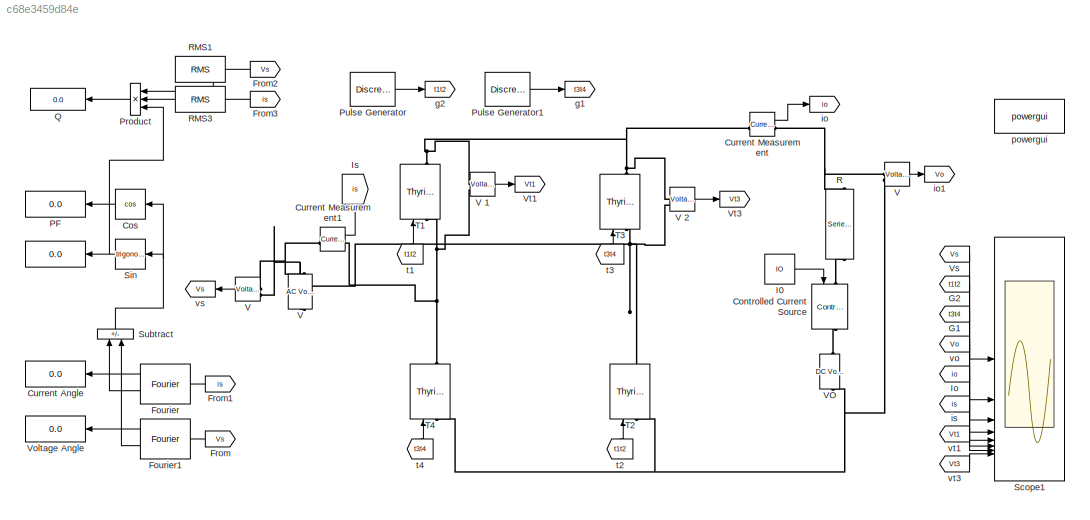
MODEL slx_c68e3459d84e
KIND model
CONFIG AbsTol = auto
CONFIG EnableMultiTasking = on
CONFIG FixedStep = auto
CONFIG InitFcn = V=311.12\nF=50\nR=0.5\nIO=10\nVO=135\nA=1\nP=50\nPA=0.02\nAN1=(30*0.02)/360\nAN2=(210*0.02)/360
CONFIG MaxStep = 1e-4
CONFIG MinStep = auto
CONFIG RelTol = 1e-3
CONFIG SampleTimeConstraint = Unconstrained
CONFIG SolverName = ode23tb
CONFIG StartTime = 0.0
CONFIG StopTime = 0.08
BLOCK [Display]   
  Decimation = 1
  NameLocation = top
BLOCK [Reference]  V  REF=spsACVoltageSourceLib/AC Voltage Source
  LibrarySourceBlock = sps_lib/Sources/AC Voltage Source
  NameLocation = right
  SourceBlock = spsACVoltageSourceLib/AC Voltage Source
  SourceType = AC Voltage Source
BLOCK [Reference]  VO  REF=spsDCVoltageSourceLib/DC Voltage Source
  LibrarySourceBlock = sps_lib/Sources/DC Voltage Source
  NameLocation = left
  SourceBlock = spsDCVoltageSourceLib/DC Voltage Source
  SourceType = DC Voltage Source
BLOCK [Reference] Controlled Current Source  REF=spsControlledCurrentSourceLib/Controlled Current Source
  LibrarySourceBlock = sps_lib/Sources/Controlled Current Source
  NameLocation = left
  SourceBlock = spsControlledCurrentSourceLib/Controlled Current Source
  SourceType = Controlled Current Source
BLOCK [Trigonometry] Cos
  NameLocation = top
  Operator = cos
BLOCK [Display] Current Angle
  Decimation = 1
  NameLocation = top
BLOCK [Reference] Current Measurement  REF=spsCurrentMeasurementLib/Current Measurement
  LibrarySourceBlock = sps_lib/Sensors and Measurements/Current Measurement
  SourceBlock = spsCurrentMeasurementLib/Current Measurement
  SourceType = Current Measurement
BLOCK [Reference] Current Measurement1  REF=spsCurrentMeasurementLib/Current Measurement
  LibrarySourceBlock = sps_lib/Sensors and Measurements/Current Measurement
  SourceBlock = spsCurrentMeasurementLib/Current Measurement
  SourceType = Current Measurement
BLOCK [Reference] Fourier  REF=spsFourierLib/Fourier
  LibrarySourceBlock = sps_lib/Sensors and Measurements/Fourier
  NameLocation = top
  SourceBlock = spsFourierLib/Fourier
  SourceType = Fourier
BLOCK [Reference] Fourier1  REF=spsFourierLib/Fourier
  LibrarySourceBlock = sps_lib/Sensors and Measurements/Fourier
  SourceBlock = spsFourierLib/Fourier
  SourceType = Fourier
BLOCK [From] From
  GotoTag = Vs
  TagVisibility = global
BLOCK [From] From1
  GotoTag = is
  NameLocation = top
BLOCK [From] From2
  GotoTag = Vs
  TagVisibility = global
BLOCK [From] From3
  GotoTag = is
BLOCK [From] G1
  GotoTag = t3t4
  TagVisibility = global
BLOCK [From] G2
  GotoTag = t1t2
  TagVisibility = global
BLOCK [Constant] I0
  Value = IO
BLOCK [From] Io
  GotoTag = io
  TagVisibility = global
BLOCK [Goto] Is
  GotoTag = is
  NameLocation = left
BLOCK [Display] PF
  Decimation = 1
  NameLocation = top
BLOCK [Product] Product
  Inputs = 3
  NameLocation = top
BLOCK [DiscretePulseGenerator] Pulse Generator
  Amplitude = A
  Period = PA
  PhaseDelay = AN1
  PulseType = Time based
  PulseWidth = P
BLOCK [DiscretePulseGenerator] Pulse Generator1
  Amplitude = A
  Period = PA
  PhaseDelay = AN2
  PulseType = Time based
  PulseWidth = P
BLOCK [Display] Q
  Decimation = 1
BLOCK [Reference] R  REF=spsSeriesRLCBranchLib/Series RLC Branch
  LibrarySourceBlock = sps_lib/Passives/Series RLC Branch
  NameLocation = left
  SourceBlock = spsSeriesRLCBranchLib/Series RLC Branch
  SourceType = Series RLC Branch
BLOCK [Reference] RMS1  REF=spsRMSLib/RMS
  LibrarySourceBlock = sps_lib/Sensors and Measurements/RMS
  NameLocation = top
  SourceBlock = spsRMSLib/RMS
  SourceType = RMS
BLOCK [Reference] RMS3  REF=spsRMSLib/RMS
  LibrarySourceBlock = sps_lib/Sensors and Measurements/RMS
  SourceBlock = spsRMSLib/RMS
  SourceType = RMS
BLOCK [Scope] Scope1
  Floating = off
  NumInputPorts = 8
  ScopeSpecificationString = Simulink.scopes.TimeScopeBlockCfg('CurrentConfiguration', extmgr.ConfigurationSet(extmgr.Configuration('Core','General UI',true,'FigureColor',[1 1 1]),extmgr.Configuration('Core','Source UI',true),extmgr.Configuration('Sources','WiredSimulink',true,'DataLogging',true,'DataLoggingVariableName','aa','DataLoggingSaveFormat','StructureWithTime','DataLoggingDecimation','1','DataLoggingDecimateData',tru...<+8634ch>
BLOCK [Trigonometry] Sin
BLOCK [Sum] Subtract
  IconShape = rectangular
  Inputs = +-
  NameLocation = right
BLOCK [Reference] T1  REF=spsThyristorLib/Thyristor
  LibrarySourceBlock = sps_lib/Power Electronics/Thyristor
  NameLocation = left
  SourceBlock = spsThyristorLib/Thyristor
  SourceType = Thyristor
BLOCK [Reference] T2  REF=spsThyristorLib/Thyristor
  LibrarySourceBlock = sps_lib/Power Electronics/Thyristor
  NameLocation = left
  SourceBlock = spsThyristorLib/Thyristor
  SourceType = Thyristor
BLOCK [Reference] T3  REF=spsThyristorLib/Thyristor
  LibrarySourceBlock = sps_lib/Power Electronics/Thyristor
  NameLocation = left
  SourceBlock = spsThyristorLib/Thyristor
  SourceType = Thyristor
BLOCK [Reference] T4  REF=spsThyristorLib/Thyristor
  LibrarySourceBlock = sps_lib/Power Electronics/Thyristor
  NameLocation = right
  SourceBlock = spsThyristorLib/Thyristor
  SourceType = Thyristor
BLOCK [Reference] V  REF=spsVoltageMeasurementLib/Voltage Measurement
  LibrarySourceBlock = sps_lib/Sensors and Measurements/Voltage Measurement
  NameLocation = top
  SourceBlock = spsVoltageMeasurementLib/Voltage Measurement
  SourceType = Voltage Measurement
BLOCK [Reference] V   REF=spsVoltageMeasurementLib/Voltage Measurement
  LibrarySourceBlock = sps_lib/Sensors and Measurements/Voltage Measurement
  NameLocation = top
  SourceBlock = spsVoltageMeasurementLib/Voltage Measurement
  SourceType = Voltage Measurement
BLOCK [Reference] V 1  REF=spsVoltageMeasurementLib/Voltage Measurement
  LibrarySourceBlock = sps_lib/Sensors and Measurements/Voltage Measurement
  NameLocation = top
  SourceBlock = spsVoltageMeasurementLib/Voltage Measurement
  SourceType = Voltage Measurement
BLOCK [Reference] V 2  REF=spsVoltageMeasurementLib/Voltage Measurement
  LibrarySourceBlock = sps_lib/Sensors and Measurements/Voltage Measurement
  NameLocation = top
  SourceBlock = spsVoltageMeasurementLib/Voltage Measurement
  SourceType = Voltage Measurement
BLOCK [Display] Voltage Angle
  Decimation = 1
  NameLocation = top
BLOCK [From] Vs
  GotoTag = Vs
  TagVisibility = global
BLOCK [Goto] Vt1
  GotoTag = Vt1
  TagVisibility = global
BLOCK [Goto] Vt3
  GotoTag = Vt3
  TagVisibility = global
BLOCK [Goto] g1
  GotoTag = t3t4
  TagVisibility = global
BLOCK [Goto] g2
  GotoTag = t1t2
  TagVisibility = global
BLOCK [Goto] io
  GotoTag = io
  NameLocation = top
  TagVisibility = global
BLOCK [Goto] io1
  GotoTag = Vo
  NameLocation = top
  TagVisibility = global
BLOCK [From] is
  GotoTag = is
BLOCK [Reference] powergui  REF=spspowerguiLib/powergui
  LibrarySourceBlock = sps_lib/powergui
  SourceBlock = spspowerguiLib/powergui
  SourceType = PSB option menu block
BLOCK [From] t1
  GotoTag = t1t2
  NameLocation = left
  TagVisibility = global
BLOCK [From] t2
  GotoTag = t1t2
  NameLocation = left
  TagVisibility = global
BLOCK [From] t3
  GotoTag = t3t4
  NameLocation = left
  TagVisibility = global
BLOCK [From] t4
  GotoTag = t3t4
  NameLocation = left
  TagVisibility = global
BLOCK [From] vo
  GotoTag = Vo
  TagVisibility = global
BLOCK [Goto] vs
  GotoTag = Vs
  NameLocation = top
  TagVisibility = global
BLOCK [From] vt1
  GotoTag = Vt1
  TagVisibility = global
BLOCK [From] vt3
  GotoTag = Vt3
  TagVisibility = global
LINE Cos:1 -> PF:1
LINE Current Measurement1:1 -> Is:1
LINE Current Measurement:1 -> io:1
NET Fourier1:2 -> Subtract:2, Voltage Angle:1
NET Fourier:2 -> Current Angle:1, Subtract:1
LINE From1:1 -> Fourier:1
LINE From2:1 -> RMS1:1
LINE From3:1 -> RMS3:1
LINE From:1 -> Fourier1:1
LINE G1:1 -> Scope1:3
LINE G2:1 -> Scope1:2
LINE I0:1 -> Controlled Current Source:1
LINE Io:1 -> Scope1:5
LINE Product:1 -> Q:1
LINE Pulse Generator1:1 -> g1:1
LINE Pulse Generator:1 -> g2:1
LINE RMS1:1 -> Product:1
LINE RMS3:1 -> Product:2
NET Sin:1 ->   :1, Product:3
NET Subtract:1 -> Cos:1, Sin:1
LINE V 1:1 -> Vt1:1
LINE V 2:1 -> Vt3:1
LINE V :1 -> io1:1
LINE V:1 -> vs:1
LINE Vs:1 -> Scope1:1
LINE is:1 -> Scope1:6
LINE t1:1 -> T1:1
LINE t2:1 -> T2:1
LINE t3:1 -> T3:1
LINE t4:1 -> T4:1
LINE vo:1 -> Scope1:4
LINE vt1:1 -> Scope1:7
LINE vt3:1 -> Scope1:8
PNET net1:  V:LConn1 -- T2:RConn1 -- T3:LConn1 -- V 2:LConn2 -- V:LConn2
PNET net2:  V:RConn1 -- Current Measurement1:LConn1 -- V:LConn1
PNET net3:  VO:LConn1 -- T2:LConn1 -- T4:LConn1 -- V :LConn2
PLINE  VO:RConn1 -- Controlled Current Source:RConn1
PLINE Controlled Current Source:LConn1 -- R:RConn1
PNET net4: Current Measurement1:RConn1 -- T1:LConn1 -- T4:RConn1 -- V 1:LConn2
PNET net5: Current Measurement:LConn1 -- T1:RConn1 -- T3:RConn1 -- V 1:LConn1 -- V 2:LConn1
PNET net6: Current Measurement:RConn1 -- R:LConn1 -- V :LConn1
note: NET lines group one-source signal fan-out (src -> all destinations, sorted); 1:1 wires keep LINE; PNET lines group multi-terminal physical nets as a canonical sorted terminal list (undirected conserving connections); 2-terminal nets keep the pairwise PLINE form
